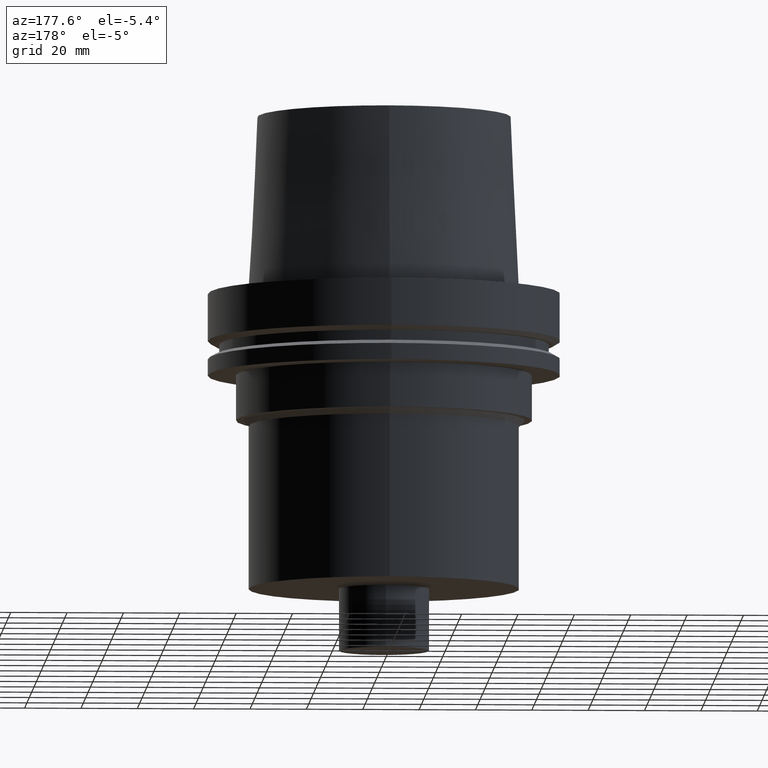
[diagram: clean part render]
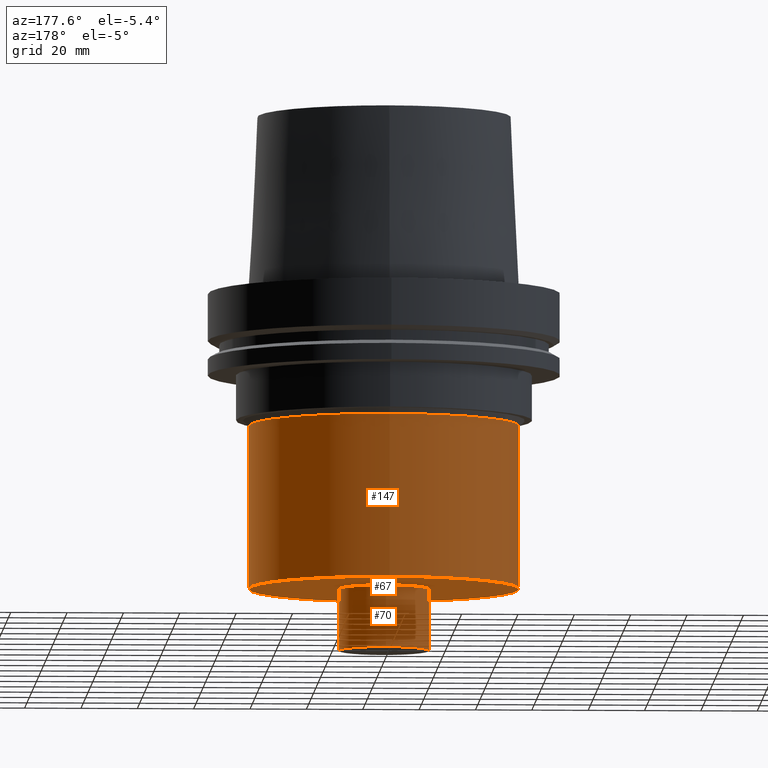
[diagram: same view with one multi-face feature highlighted, each face labeled with its STEP entity id]
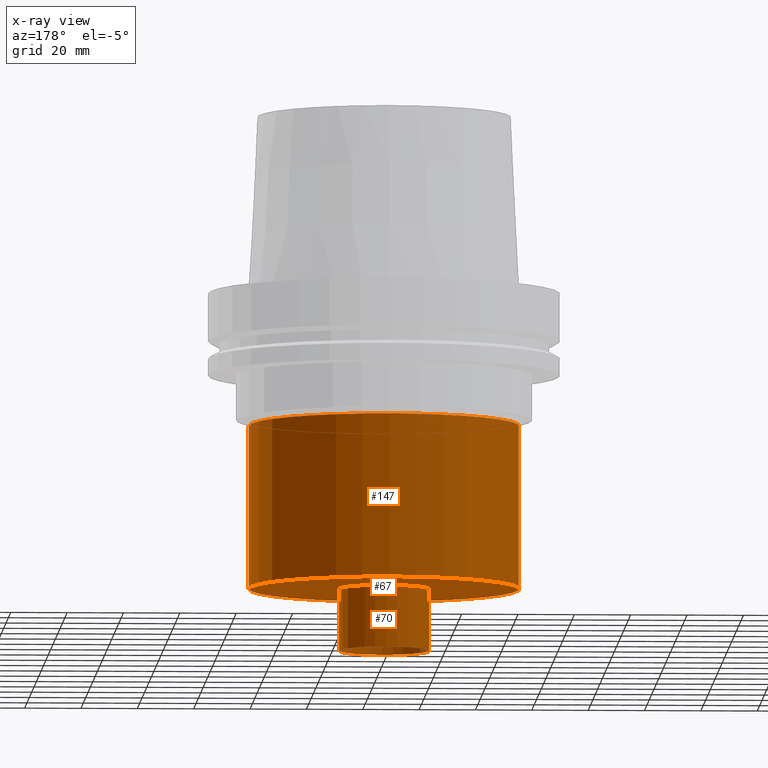
[diagram: x-ray of the same camera — body ghosted, the whole feature saturated]
A machine part, auxiliary view. The highlighted faces form ONE feature: a stepped (counterbored) hole: 2 coaxial cylindrical walls of radii 16 -> 48 mm joined by 1 annular planar shoulder face(s). The faces share edges in the B-rep.
The next image is the same camera in x-ray: the body ghosted and the whole hole feature saturated, so the bore chain is visible through the body.
Their STEP definitions:
[1] entity #147 (Cylinder):
#97=EDGE_CURVE('Unnamed[1]',#227,#227,#228,.T.);
#138=EDGE_CURVE('Unnamed[1]',#290,#290,#291,.T.);
#147=ADVANCED_FACE('Unnamed[1]',(#302,#303),#304,.T.);
#227=VERTEX_POINT('',#389);
#228=CIRCLE('',#390,48.0);
#290=VERTEX_POINT('',#470);
#291=CIRCLE('',#471,48.0);
#302=FACE_BOUND('',#484,.T.);
#303=FACE_BOUND('',#485,.T.);
#304=CYLINDRICAL_SURFACE('',#486,48.0);
#389=CARTESIAN_POINT('',(6.4293956955236E-015,48.0,-105.0));
#390=AXIS2_PLACEMENT_3D('',#563,#564,#565);
#470=CARTESIAN_POINT('',(2.87791997799629E-015,48.0,-47.0000000000001));
#471=AXIS2_PLACEMENT_3D('',#631,#632,#633);
#484=EDGE_LOOP('',(#642));
#485=EDGE_LOOP('',(#643));
#486=AXIS2_PLACEMENT_3D('',#644,#645,#646);
#563=CARTESIAN_POINT('',(6.4293956955236E-015,1.28587913910472E-014,-105.0));
#564=DIRECTION('',(6.12323399573677E-017,1.22464679914735E-016,-1.0));
#565=DIRECTION('',(-1.23259516440783E-032,1.0,1.22464679914735E-016));
#631=CARTESIAN_POINT('',(2.87791997799629E-015,5.75583995599257E-015,-47.0000000000001));
#632=DIRECTION('',(6.12323399573677E-017,1.22464679914735E-016,-1.0));
#633=DIRECTION('',(-1.23259516440783E-032,1.0,1.22464679914735E-016));
#642=ORIENTED_EDGE('',*,*,#97,.F.);
#643=ORIENTED_EDGE('',*,*,#138,.T.);
#644=CARTESIAN_POINT('',(4.65365783675995E-015,9.30731567351989E-015,-76.0000000000001));
#645=DIRECTION('',(6.12323399573677E-017,1.22464679914735E-016,-1.0));
#646=DIRECTION('',(-1.23259516440783E-032,1.0,1.22464679914735E-016));
[2] entity #70 (Cylinder):
#70=ADVANCED_FACE('Unnamed[1]',(#183,#184),#185,.T.);
#124=EDGE_CURVE('Unnamed[1]',#268,#268,#269,.T.);
#133=EDGE_CURVE('Unnamed[1]',#282,#282,#283,.T.);
#183=FACE_BOUND('',#335,.T.);
#184=FACE_BOUND('',#336,.T.);
#185=CYLINDRICAL_SURFACE('',#337,15.9999999999998);
#268=VERTEX_POINT('',#442);
#269=CIRCLE('',#443,15.9999999999999);
#282=VERTEX_POINT('',#460);
#283=CIRCLE('',#461,15.9999999999996);
#335=EDGE_LOOP('',(#511));
#336=EDGE_LOOP('',(#512));
#337=AXIS2_PLACEMENT_3D('',#513,#514,#515);
#442=CARTESIAN_POINT('',(6.4293956955236E-015,15.9999999999999,-105.0));
#443=AXIS2_PLACEMENT_3D('',#607,#608,#609);
#460=CARTESIAN_POINT('',(7.77650717458566E-015,15.9999999999996,-127.0));
#461=AXIS2_PLACEMENT_3D('',#622,#623,#624);
#511=ORIENTED_EDGE('',*,*,#133,.F.);
#512=ORIENTED_EDGE('',*,*,#124,.T.);
#513=CARTESIAN_POINT('',(7.10295143505463E-015,1.42059028701093E-014,-116.0));
#514=DIRECTION('',(6.12323399573677E-017,1.22464679914735E-016,-1.0));
#515=DIRECTION('',(-1.23259516440783E-032,1.0,1.22464679914735E-016));
#607=CARTESIAN_POINT('',(6.4293956955236E-015,1.28587913910472E-014,-105.0));
#608=DIRECTION('',(6.12323399573677E-017,1.22464679914735E-016,-1.0));
#609=DIRECTION('',(-1.23259516440783E-032,1.0,1.22464679914735E-016));
#622=CARTESIAN_POINT('',(7.77650717458566E-015,1.55530143491713E-014,-127.0));
#623=DIRECTION('',(6.12323399573677E-017,1.22464679914735E-016,-1.0));
#624=DIRECTION('',(-1.23259516440783E-032,1.0,1.22464679914735E-016));
[3] entity #67 (Plane):
#67=ADVANCED_FACE('Unnamed[1]',(#178,#179),#180,.T.);
#97=EDGE_CURVE('Unnamed[1]',#227,#227,#228,.T.);
#124=EDGE_CURVE('Unnamed[1]',#268,#268,#269,.T.);
#178=FACE_BOUND('',#329,.T.);
#179=FACE_OUTER_BOUND('',#330,.T.);
#180=PLANE('',#331);
#227=VERTEX_POINT('',#389);
#228=CIRCLE('',#390,48.0);
#268=VERTEX_POINT('',#442);
#269=CIRCLE('',#443,15.9999999999999);
#329=EDGE_LOOP('',(#505));
#330=EDGE_LOOP('',(#506));
#331=AXIS2_PLACEMENT_3D('',#507,#508,#509);
#389=CARTESIAN_POINT('',(6.4293956955236E-015,48.0,-105.0));
#390=AXIS2_PLACEMENT_3D('',#563,#564,#565);
#442=CARTESIAN_POINT('',(6.4293956955236E-015,15.9999999999999,-105.0));
#443=AXIS2_PLACEMENT_3D('',#607,#608,#609);
#505=ORIENTED_EDGE('',*,*,#124,.F.);
#506=ORIENTED_EDGE('',*,*,#97,.T.);
#507=CARTESIAN_POINT('',(6.4293956955236E-015,32.0,-105.0));
#508=DIRECTION('',(6.12323399573677E-017,1.22464679914735E-016,-1.0));
#509=DIRECTION('',(-1.23259516440783E-032,1.0,1.22464679914735E-016));
#563=CARTESIAN_POINT('',(6.4293956955236E-015,1.28587913910472E-014,-105.0));
#564=DIRECTION('',(6.12323399573677E-017,1.22464679914735E-016,-1.0));
#565=DIRECTION('',(-1.23259516440783E-032,1.0,1.22464679914735E-016));
#607=CARTESIAN_POINT('',(6.4293956955236E-015,1.28587913910472E-014,-105.0));
#608=DIRECTION('',(6.12323399573677E-017,1.22464679914735E-016,-1.0));
#609=DIRECTION('',(-1.23259516440783E-032,1.0,1.22464679914735E-016));